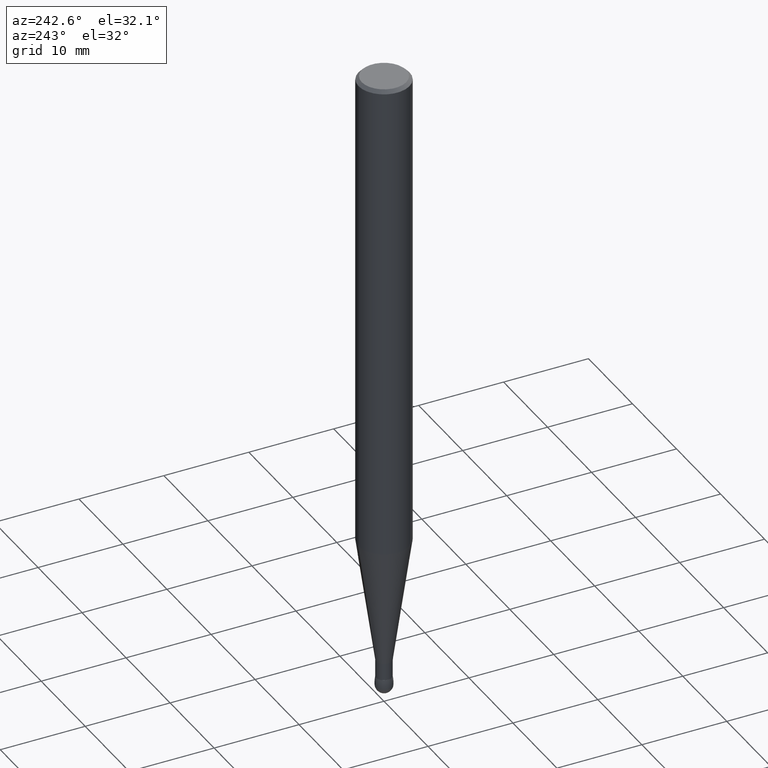
[diagram: clean part render]
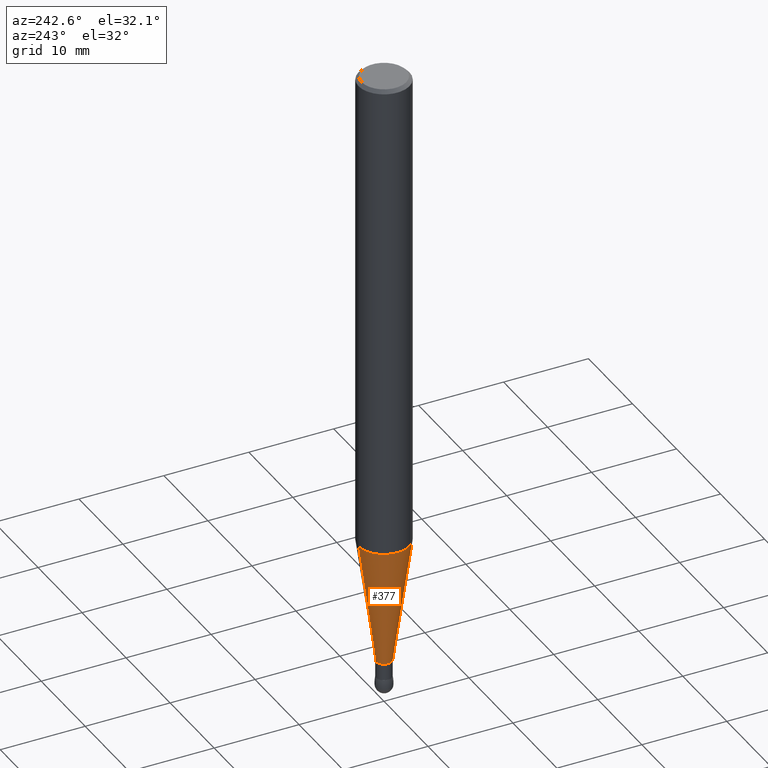
[diagram: same view with one face highlighted and labeled with its STEP entity id]
A machine part, auxiliary view. The second image highlights one B-rep face of the part: STEP entity #377.
In plain terms, the highlighted conical surface has half-angle 8 deg.
Its self-contained STEP definition (entity closure, byte-faithful):
#15 = CARTESIAN_POINT ( 'NONE',  ( 2.557953848737091158E-16, 0.03599999999999062977, -2.834600000000000009 ) ) ;
#20 = VERTEX_POINT ( 'NONE', #432 ) ;
#22 = EDGE_CURVE ( 'NONE', #141, #244, #107, .T. ) ;
#44 = DIRECTION ( 'NONE',  ( 6.982962677686267499E-15, 1.000000000000000000, 0.000000000000000000 ) ) ;
#50 = DIRECTION ( 'NONE',  ( 6.982962677686265922E-15, 1.000000000000000000, -4.626330217890383536E-15 ) ) ;
#64 = AXIS2_PLACEMENT_3D ( 'NONE', #118, #233, #44 ) ;
#81 = LINE ( 'NONE', #195, #292 ) ;
#83 = CONICAL_SURFACE ( 'NONE', #370, 0.03600000000000053157, 0.1396263401595466414 ) ;
#91 = DIRECTION ( 'NONE',  ( -6.982962677686267499E-15, -1.000000000000000000, 0.000000000000000000 ) ) ;
#100 = ORIENTED_EDGE ( 'NONE', *, *, #138, .T. ) ;
#102 = VERTEX_POINT ( 'NONE', #407 ) ;
#107 = CIRCLE ( 'NONE', #64, 0.03600000000000053157 ) ;
#118 = CARTESIAN_POINT ( 'NONE',  ( 6.927008543871126381E-29, -9.903994905452345599E-15, -2.834600000000000009 ) ) ;
#129 = CARTESIAN_POINT ( 'NONE',  ( 5.474731779032196642E-16, 0.03599999999999062977, -2.834600000000000009 ) ) ;
#138 = EDGE_CURVE ( 'NONE', #102, #20, #433, .T. ) ;
#141 = VERTEX_POINT ( 'NONE', #474 ) ;
#142 = AXIS2_PLACEMENT_3D ( 'NONE', #240, #304, #50 ) ;
#143 = DIRECTION ( 'NONE',  ( -2.443734052025374583E-29, 3.493965605535999684E-15, 1.000000000000000000 ) ) ;
#153 = DIRECTION ( 'NONE',  ( -9.718405697420258456E-16, -0.1391731009600622460, 0.9902680687415706950 ) ) ;
#195 = CARTESIAN_POINT ( 'NONE',  ( -2.513866563966400610E-16, -0.03600000000001044032, -2.834600000000000009 ) ) ;
#196 = DIRECTION ( 'NONE',  ( 9.888843590037927364E-16, 0.1391731009600691849, 0.9902680687415698069 ) ) ;
#201 = LINE ( 'NONE', #15, #382 ) ;
#206 = EDGE_LOOP ( 'NONE', ( #486, #441, #315, #100 ) ) ;
#233 = DIRECTION ( 'NONE',  ( 2.443734052025374583E-29, -3.493965605535999684E-15, -1.000000000000000000 ) ) ;
#240 = CARTESIAN_POINT ( 'NONE',  ( 5.499447891508879330E-29, -7.862918539128323536E-15, -2.250428145792263912 ) ) ;
#244 = VERTEX_POINT ( 'NONE', #129 ) ;
#282 = EDGE_CURVE ( 'NONE', #244, #20, #201, .T. ) ;
#292 = VECTOR ( 'NONE', #153, 39.37007874015748854 ) ;
#304 = DIRECTION ( 'NONE',  ( 2.443734052025374583E-29, -3.493965605535999684E-15, -1.000000000000000000 ) ) ;
#315 = ORIENTED_EDGE ( 'NONE', *, *, #457, .T. ) ;
#325 = CARTESIAN_POINT ( 'NONE',  ( 6.927008543871126381E-29, -9.903994905452345599E-15, -2.834600000000000009 ) ) ;
#330 = FACE_OUTER_BOUND ( 'NONE', #206, .T. ) ;
#370 = AXIS2_PLACEMENT_3D ( 'NONE', #325, #143, #91 ) ;
#377 = ADVANCED_FACE ( 'NONE', ( #330 ), #83, .T. ) ;
#382 = VECTOR ( 'NONE', #196, 39.37007874015748143 ) ;
#407 = CARTESIAN_POINT ( 'NONE',  ( -8.246878922346906758E-16, -0.1181000000000075323, -2.250428145792263468 ) ) ;
#432 = CARTESIAN_POINT ( 'NONE',  ( 8.391509709327303605E-16, 0.1180999999999917532, -2.250428145792263912 ) ) ;
#433 = CIRCLE ( 'NONE', #142, 0.1180999999999996358 ) ;
#441 = ORIENTED_EDGE ( 'NONE', *, *, #22, .F. ) ;
#457 = EDGE_CURVE ( 'NONE', #141, #102, #81, .T. ) ;
#474 = CARTESIAN_POINT ( 'NONE',  ( -5.380372743156651958E-16, -0.03600000000001044032, -2.834600000000000009 ) ) ;
#486 = ORIENTED_EDGE ( 'NONE', *, *, #282, .F. ) ;